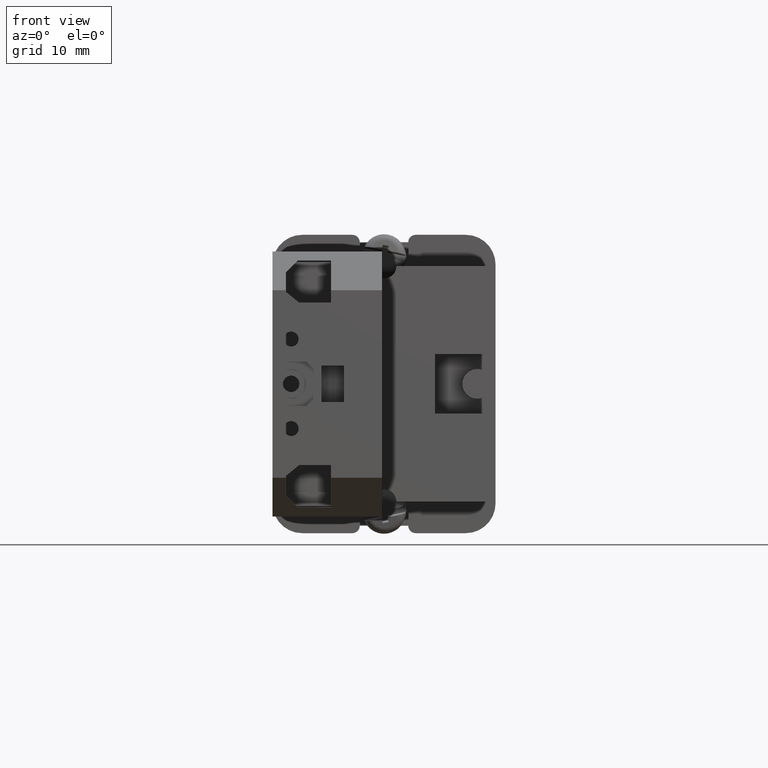
[diagram: clean part render]
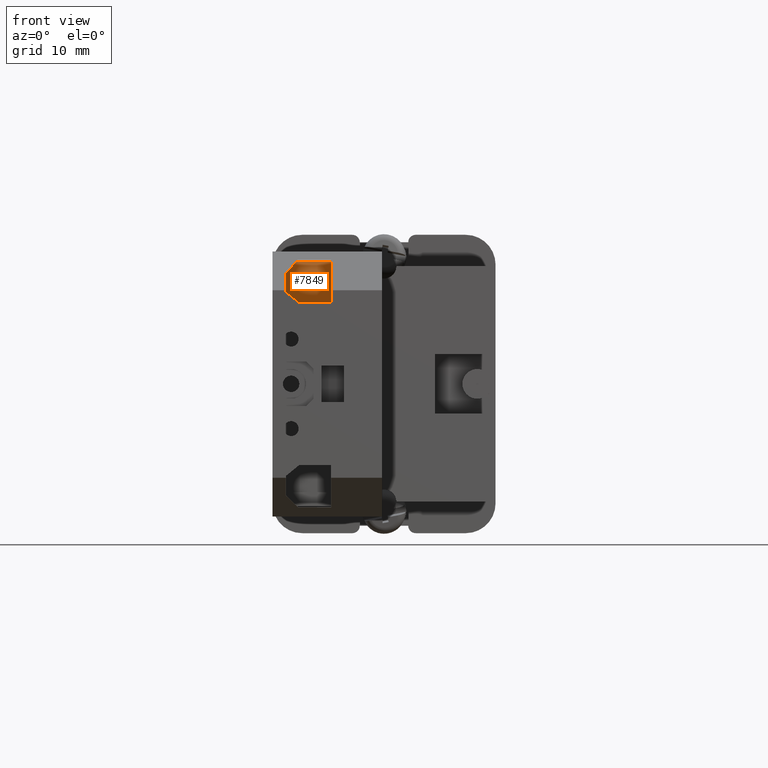
[diagram: same view with one face highlighted and labeled with its STEP entity id]
A machine part, front view. The second image highlights one B-rep face of the part: STEP entity #7849.
In plain terms, the highlighted planar face has unit normal (0, 1, 0).
Its self-contained STEP definition (entity closure, byte-faithful):
#40 = VERTEX_POINT ( 'NONE', #6877 ) ;
#464 = ORIENTED_EDGE ( 'NONE', *, *, #493, .F. ) ;
#493 = EDGE_CURVE ( 'NONE', #10485, #5867, #6718, .T. ) ;
#743 = CARTESIAN_POINT ( 'NONE',  ( 0.1331259337428179800, 0.6439905325434132100, -0.4330708661417306300 ) ) ;
#847 = EDGE_CURVE ( 'NONE', #9740, #1297, #1914, .T. ) ;
#1184 = PLANE ( 'NONE',  #7056 ) ;
#1297 = VERTEX_POINT ( 'NONE', #2089 ) ;
#1742 = ORIENTED_EDGE ( 'NONE', *, *, #12758, .T. ) ;
#1767 = CARTESIAN_POINT ( 'NONE',  ( -0.04978773008296114000, 0.4291338582677189900, -0.4330708661417306300 ) ) ;
#1914 = LINE ( 'NONE', #6703, #4469 ) ;
#1988 = CARTESIAN_POINT ( 'NONE',  ( -8.309900408634051400E-015, 0.4291338582677199400, -0.4330708661417306300 ) ) ;
#2089 = CARTESIAN_POINT ( 'NONE',  ( 0.1889763779527559300, 0.4859763636628803800, -0.4330708661417306300 ) ) ;
#2262 = DIRECTION ( 'NONE',  ( 1.000000000000000000, 0.0000000000000000000, 0.0000000000000000000 ) ) ;
#2673 = VECTOR ( 'NONE', #6582, 39.37007874015748100 ) ;
#3019 = CARTESIAN_POINT ( 'NONE',  ( 0.3896700626310465300, 0.3829328140553508500, -0.4330708661417306300 ) ) ;
#3397 = EDGE_CURVE ( 'NONE', #5867, #9740, #4095, .T. ) ;
#3694 = VECTOR ( 'NONE', #3959, 39.37007874015748100 ) ;
#3959 = DIRECTION ( 'NONE',  ( 3.374948396842037500E-016, 1.000000000000000000, 0.0000000000000000000 ) ) ;
#4095 = LINE ( 'NONE', #1988, #12695 ) ;
#4469 = VECTOR ( 'NONE', #11247, 39.37007874015748900 ) ;
#4472 = ORIENTED_EDGE ( 'NONE', *, *, #12722, .F. ) ;
#5475 = CARTESIAN_POINT ( 'NONE',  ( 0.0000000000000000000, 0.6439905325434132100, -0.4330708661417306300 ) ) ;
#5867 = VERTEX_POINT ( 'NONE', #1767 ) ;
#5923 = LINE ( 'NONE', #5475, #2673 ) ;
#6459 = CARTESIAN_POINT ( 'NONE',  ( -0.04978773008296116800, 0.6439905325434132100, -0.4330708661417306300 ) ) ;
#6582 = DIRECTION ( 'NONE',  ( 1.000000000000000000, -0.0000000000000000000, 0.0000000000000000000 ) ) ;
#6619 = LINE ( 'NONE', #11793, #3694 ) ;
#6703 = CARTESIAN_POINT ( 'NONE',  ( -0.1623979967168369400, 0.1984824297787461900, -0.4330708661417306300 ) ) ;
#6718 = LINE ( 'NONE', #9927, #9008 ) ;
#6877 = CARTESIAN_POINT ( 'NONE',  ( 0.1889763779527559600, 0.5871574660250851200, -0.4330708661417306300 ) ) ;
#7034 = EDGE_CURVE ( 'NONE', #10485, #9793, #5923, .T. ) ;
#7056 = AXIS2_PLACEMENT_3D ( 'NONE', #9976, #8895, #2262 ) ;
#7448 = FACE_OUTER_BOUND ( 'NONE', #9698, .T. ) ;
#7713 = DIRECTION ( 'NONE',  ( 1.153406566473941000E-016, -1.000000000000000000, 0.0000000000000000000 ) ) ;
#7849 = ADVANCED_FACE ( 'NONE', ( #7448 ), #1184, .F. ) ;
#8895 = DIRECTION ( 'NONE',  ( -0.0000000000000000000, 0.0000000000000000000, 1.000000000000000000 ) ) ;
#9008 = VECTOR ( 'NONE', #7713, 39.37007874015748100 ) ;
#9262 = VECTOR ( 'NONE', #10778, 39.37007874015748900 ) ;
#9698 = EDGE_LOOP ( 'NONE', ( #12969, #1742, #4472, #12024, #10157, #464 ) ) ;
#9719 = DIRECTION ( 'NONE',  ( 1.000000000000000000, 1.936435508067001800E-014, 0.0000000000000000000 ) ) ;
#9740 = VERTEX_POINT ( 'NONE', #11689 ) ;
#9793 = VERTEX_POINT ( 'NONE', #743 ) ;
#9927 = CARTESIAN_POINT ( 'NONE',  ( -0.04978773008296109200, -5.742549480751950100E-018, -0.4330708661417306300 ) ) ;
#9976 = CARTESIAN_POINT ( 'NONE',  ( 0.0000000000000000000, 0.0000000000000000000, -0.4330708661417306300 ) ) ;
#10157 = ORIENTED_EDGE ( 'NONE', *, *, #3397, .F. ) ;
#10485 = VERTEX_POINT ( 'NONE', #6459 ) ;
#10778 = DIRECTION ( 'NONE',  ( 0.7009140225237534500, -0.7132457732293763200, 0.0000000000000000000 ) ) ;
#11247 = DIRECTION ( 'NONE',  ( 0.7739510281170713900, 0.6332454548407972000, 0.0000000000000000000 ) ) ;
#11689 = CARTESIAN_POINT ( 'NONE',  ( 0.1195036084997275500, 0.4291338582677222700, -0.4330708661417306300 ) ) ;
#11793 = CARTESIAN_POINT ( 'NONE',  ( 0.1889763779527557600, -6.377855238126680700E-017, -0.4330708661417306300 ) ) ;
#12024 = ORIENTED_EDGE ( 'NONE', *, *, #847, .F. ) ;
#12270 = LINE ( 'NONE', #3019, #9262 ) ;
#12695 = VECTOR ( 'NONE', #9719, 39.37007874015748100 ) ;
#12722 = EDGE_CURVE ( 'NONE', #1297, #40, #6619, .T. ) ;
#12758 = EDGE_CURVE ( 'NONE', #9793, #40, #12270, .T. ) ;
#12969 = ORIENTED_EDGE ( 'NONE', *, *, #7034, .T. ) ;